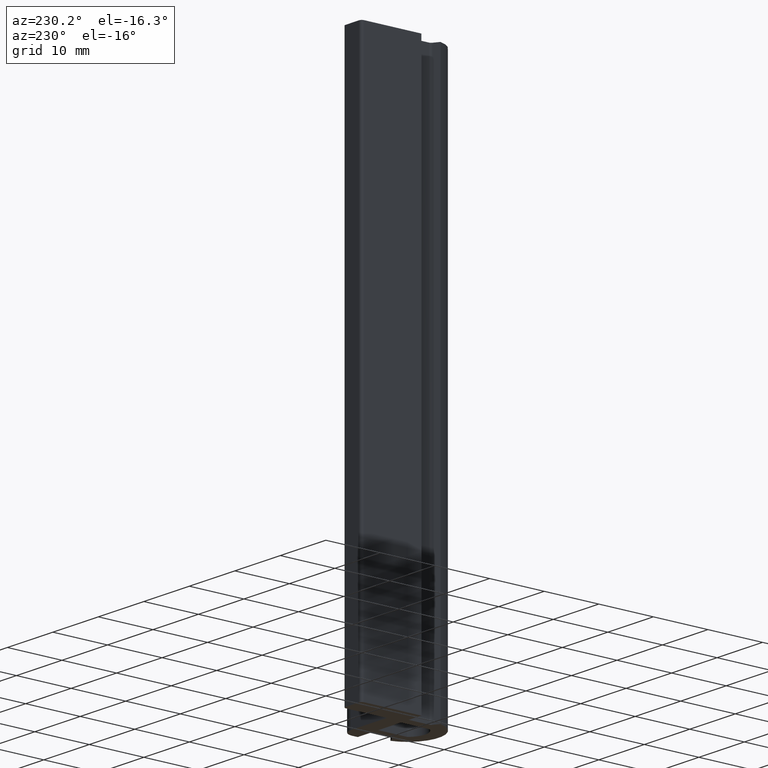
[diagram: clean part render]
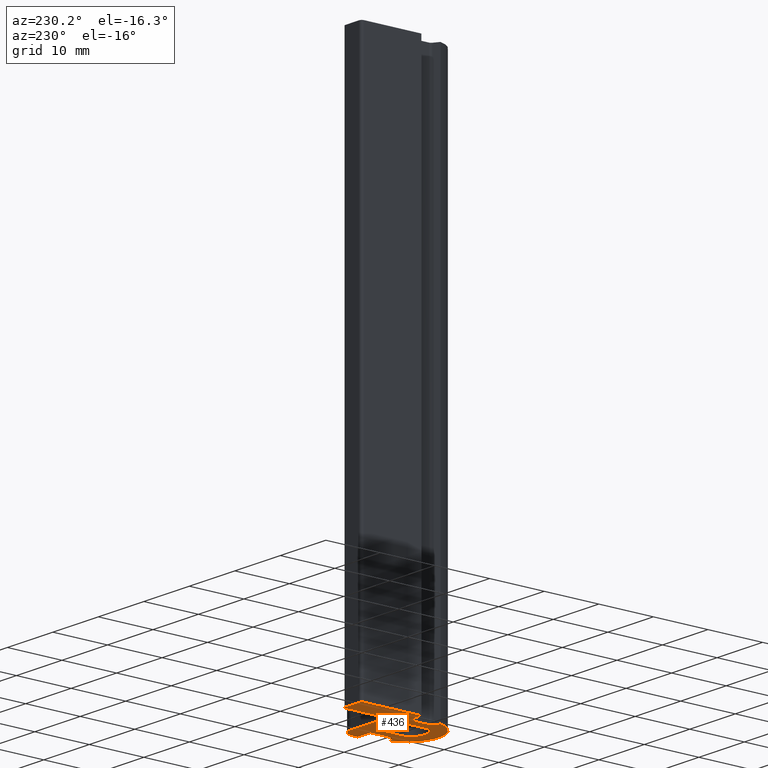
[diagram: same view with one face highlighted and labeled with its STEP entity id]
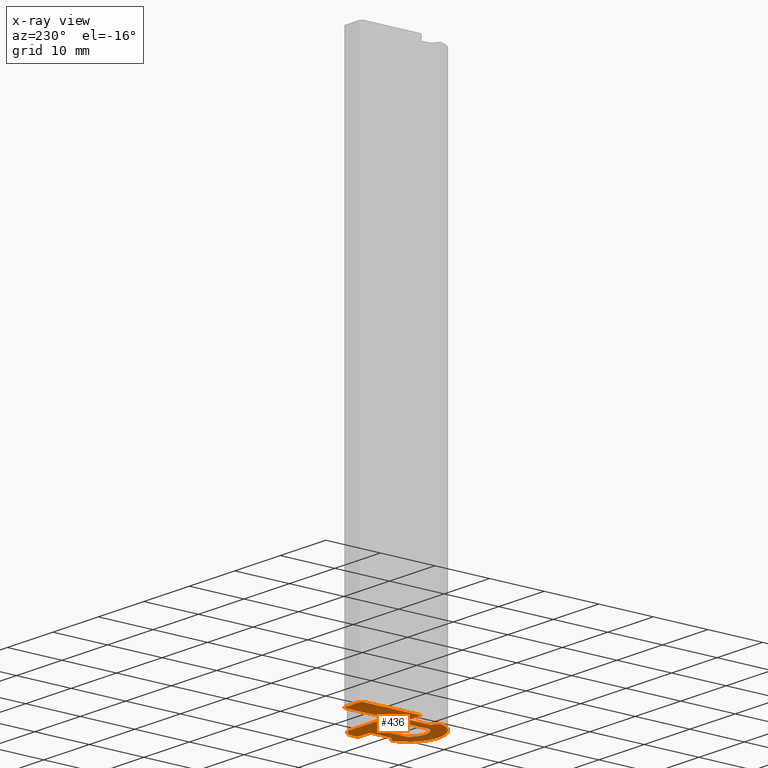
[diagram: x-ray of the same camera — body ghosted, the highlighted face saturated]
A machine part, auxiliary view. The second image highlights one B-rep face of the part: STEP entity #436.
The next image is the same camera in x-ray: the body ghosted, the highlighted face saturated — about 0% of this face is hidden behind the body in this view.
In plain terms, the highlighted planar face has unit normal (0, 0, 1).
Its self-contained STEP definition (entity closure, byte-faithful):
#15=FACE_BOUND('',#62,.T.);
#19=PLANE('',#467);
#38=FACE_OUTER_BOUND('',#61,.T.);
#61=EDGE_LOOP('',(#318,#319,#320,#321,#322,#323,#324,#325,#326,#327,#328,
#329,#330,#331,#332,#333,#334));
#62=EDGE_LOOP('',(#335,#336,#337,#338));
#83=LINE('',#630,#132);
#88=LINE('',#645,#137);
#93=LINE('',#660,#142);
#94=LINE('',#664,#143);
#95=LINE('',#666,#144);
#96=LINE('',#670,#145);
#97=LINE('',#671,#146);
#98=LINE('',#673,#147);
#99=LINE('',#676,#148);
#100=LINE('',#678,#149);
#101=LINE('',#679,#150);
#102=LINE('',#682,#151);
#103=LINE('',#684,#152);
#104=LINE('',#687,#153);
#132=VECTOR('',#505,1.21243556529822);
#137=VECTOR('',#518,3.71132486540519);
#142=VECTOR('',#531,3.);
#143=VECTOR('',#534,7.5);
#144=VECTOR('',#535,8.);
#145=VECTOR('',#538,1.);
#146=VECTOR('',#539,2.8);
#147=VECTOR('',#540,1.21243556529821);
#148=VECTOR('',#543,3.71132486540519);
#149=VECTOR('',#544,2.8);
#150=VECTOR('',#545,10.5);
#151=VECTOR('',#546,5.);
#152=VECTOR('',#547,5.28777142304358);
#153=VECTOR('',#550,5.28777142304358);
#179=CIRCLE('',#457,0.5);
#181=CIRCLE('',#461,0.5);
#184=CIRCLE('',#466,0.5);
#185=CIRCLE('',#468,0.5);
#186=CIRCLE('',#469,2.);
#187=CIRCLE('',#470,5.68401094873188);
#188=CIRCLE('',#471,3.18401094873187);
#193=VERTEX_POINT('',#620);
#194=VERTEX_POINT('',#621);
#197=VERTEX_POINT('',#629);
#199=VERTEX_POINT('',#635);
#200=VERTEX_POINT('',#636);
#203=VERTEX_POINT('',#644);
#207=VERTEX_POINT('',#653);
#208=VERTEX_POINT('',#655);
#209=VERTEX_POINT('',#659);
#210=VERTEX_POINT('',#661);
#211=VERTEX_POINT('',#663);
#212=VERTEX_POINT('',#665);
#213=VERTEX_POINT('',#667);
#214=VERTEX_POINT('',#669);
#215=VERTEX_POINT('',#672);
#216=VERTEX_POINT('',#675);
#217=VERTEX_POINT('',#677);
#218=VERTEX_POINT('',#680);
#219=VERTEX_POINT('',#681);
#220=VERTEX_POINT('',#683);
#221=VERTEX_POINT('',#685);
#235=EDGE_CURVE('',#193,#194,#179,.T.);
#239=EDGE_CURVE('',#197,#194,#83,.T.);
#242=EDGE_CURVE('',#199,#200,#181,.T.);
#246=EDGE_CURVE('',#203,#200,#88,.T.);
#251=EDGE_CURVE('',#207,#208,#184,.T.);
#253=EDGE_CURVE('',#207,#209,#93,.T.);
#254=EDGE_CURVE('',#210,#209,#185,.T.);
#255=EDGE_CURVE('',#210,#211,#94,.T.);
#256=EDGE_CURVE('',#211,#212,#95,.T.);
#257=EDGE_CURVE('',#213,#212,#186,.T.);
#258=EDGE_CURVE('',#213,#214,#96,.T.);
#259=EDGE_CURVE('',#214,#203,#97,.T.);
#260=EDGE_CURVE('',#199,#215,#98,.T.);
#261=EDGE_CURVE('',#215,#197,#187,.T.);
#262=EDGE_CURVE('',#193,#216,#99,.T.);
#263=EDGE_CURVE('',#216,#217,#100,.T.);
#264=EDGE_CURVE('',#217,#208,#101,.T.);
#265=EDGE_CURVE('',#218,#219,#102,.T.);
#266=EDGE_CURVE('',#219,#220,#103,.T.);
#267=EDGE_CURVE('',#220,#221,#188,.T.);
#268=EDGE_CURVE('',#221,#218,#104,.T.);
#318=ORIENTED_EDGE('',*,*,#251,.F.);
#319=ORIENTED_EDGE('',*,*,#253,.T.);
#320=ORIENTED_EDGE('',*,*,#254,.F.);
#321=ORIENTED_EDGE('',*,*,#255,.T.);
#322=ORIENTED_EDGE('',*,*,#256,.T.);
#323=ORIENTED_EDGE('',*,*,#257,.F.);
#324=ORIENTED_EDGE('',*,*,#258,.T.);
#325=ORIENTED_EDGE('',*,*,#259,.T.);
#326=ORIENTED_EDGE('',*,*,#246,.T.);
#327=ORIENTED_EDGE('',*,*,#242,.F.);
#328=ORIENTED_EDGE('',*,*,#260,.T.);
#329=ORIENTED_EDGE('',*,*,#261,.T.);
#330=ORIENTED_EDGE('',*,*,#239,.T.);
#331=ORIENTED_EDGE('',*,*,#235,.F.);
#332=ORIENTED_EDGE('',*,*,#262,.T.);
#333=ORIENTED_EDGE('',*,*,#263,.T.);
#334=ORIENTED_EDGE('',*,*,#264,.T.);
#335=ORIENTED_EDGE('',*,*,#265,.T.);
#336=ORIENTED_EDGE('',*,*,#266,.T.);
#337=ORIENTED_EDGE('',*,*,#267,.T.);
#338=ORIENTED_EDGE('',*,*,#268,.T.);
#436=ADVANCED_FACE('',(#38,#15),#19,.F.);
#457=AXIS2_PLACEMENT_3D('',#622,#497,#498);
#461=AXIS2_PLACEMENT_3D('',#637,#510,#511);
#466=AXIS2_PLACEMENT_3D('',#656,#526,#527);
#467=AXIS2_PLACEMENT_3D('',#658,#529,#530);
#468=AXIS2_PLACEMENT_3D('',#662,#532,#533);
#469=AXIS2_PLACEMENT_3D('',#668,#536,#537);
#470=AXIS2_PLACEMENT_3D('',#674,#541,#542);
#471=AXIS2_PLACEMENT_3D('',#686,#548,#549);
#497=DIRECTION('center_axis',(0.,0.,-1.));
#498=DIRECTION('ref_axis',(0.866025403784439,-0.5,0.));
#505=DIRECTION('',(0.866025403784439,0.5,0.));
#510=DIRECTION('center_axis',(0.,0.,-1.));
#511=DIRECTION('ref_axis',(-0.866025403784439,-0.5,0.));
#518=DIRECTION('',(0.,-1.,0.));
#526=DIRECTION('center_axis',(0.,0.,1.));
#527=DIRECTION('ref_axis',(-0.707106781186549,0.707106781186546,0.));
#529=DIRECTION('center_axis',(0.,0.,1.));
#530=DIRECTION('ref_axis',(1.,0.,0.));
#531=DIRECTION('',(1.,0.,0.));
#532=DIRECTION('center_axis',(0.,0.,1.));
#533=DIRECTION('ref_axis',(0.707106781186546,0.707106781186549,0.));
#534=DIRECTION('',(0.,-1.,0.));
#535=DIRECTION('',(1.,0.,0.));
#536=DIRECTION('center_axis',(0.,0.,1.));
#537=DIRECTION('ref_axis',(0.707106781186548,0.707106781186547,0.));
#538=DIRECTION('',(0.,-1.,0.));
#539=DIRECTION('',(-1.,0.,0.));
#540=DIRECTION('',(0.866025403784438,-0.5,0.));
#541=DIRECTION('center_axis',(0.,0.,-1.));
#542=DIRECTION('ref_axis',(0.967626566804392,0.25238626589881,0.));
#543=DIRECTION('',(-1.38777878078145E-16,1.,0.));
#544=DIRECTION('',(-1.,0.,0.));
#545=DIRECTION('',(0.,1.,0.));
#546=DIRECTION('',(-1.,0.,0.));
#547=DIRECTION('',(0.,-1.,0.));
#548=DIRECTION('center_axis',(0.,0.,1.));
#549=DIRECTION('ref_axis',(0.785173179443902,0.619276253607349,0.));
#550=DIRECTION('',(5.24901199296794E-17,1.,0.));
#620=CARTESIAN_POINT('',(-4.2,-3.71132486540519,0.));
#621=CARTESIAN_POINT('',(-4.45,-4.14433756729741,0.));
#622=CARTESIAN_POINT('Origin',(-4.7,-3.71132486540519,0.));
#629=CARTESIAN_POINT('',(-5.5,-4.75055534994651,0.));
#630=CARTESIAN_POINT('',(-5.5,-4.75055534994651,0.));
#635=CARTESIAN_POINT('',(4.45,-4.14433756729741,0.));
#636=CARTESIAN_POINT('',(4.2,-3.71132486540519,0.));
#637=CARTESIAN_POINT('Origin',(4.7,-3.71132486540519,0.));
#644=CARTESIAN_POINT('',(4.2,0.,0.));
#645=CARTESIAN_POINT('',(4.2,0.,0.));
#653=CARTESIAN_POINT('',(-6.5,11.,0.));
#655=CARTESIAN_POINT('',(-7.,10.5,0.));
#656=CARTESIAN_POINT('Origin',(-6.5,10.5,0.));
#658=CARTESIAN_POINT('Origin',(-1.25353572710204,1.28134908684579,0.));
#659=CARTESIAN_POINT('',(-3.5,11.,0.));
#660=CARTESIAN_POINT('',(-7.,11.,0.));
#661=CARTESIAN_POINT('',(-3.,10.5,0.));
#662=CARTESIAN_POINT('Origin',(-3.5,10.5,0.));
#663=CARTESIAN_POINT('',(-3.,3.,0.));
#664=CARTESIAN_POINT('',(-3.,11.,0.));
#665=CARTESIAN_POINT('',(5.,3.,0.));
#666=CARTESIAN_POINT('',(-3.,3.,0.));
#667=CARTESIAN_POINT('',(7.,1.,0.));
#668=CARTESIAN_POINT('Origin',(5.,1.,0.));
#669=CARTESIAN_POINT('',(7.,0.,0.));
#670=CARTESIAN_POINT('',(7.,3.,0.));
#671=CARTESIAN_POINT('',(7.,0.,0.));
#672=CARTESIAN_POINT('',(5.5,-4.75055534994651,0.));
#673=CARTESIAN_POINT('',(4.2,-4.,0.));
#674=CARTESIAN_POINT('Origin',(0.,-3.31598905126813,0.));
#675=CARTESIAN_POINT('',(-4.2,0.,0.));
#676=CARTESIAN_POINT('',(-4.2,-4.,0.));
#677=CARTESIAN_POINT('',(-7.,0.,0.));
#678=CARTESIAN_POINT('',(-4.2,0.,0.));
#679=CARTESIAN_POINT('',(-7.,0.,0.));
#680=CARTESIAN_POINT('',(2.5,0.,0.));
#681=CARTESIAN_POINT('',(-2.5,0.,0.));
#682=CARTESIAN_POINT('',(0.623232136448981,0.,0.));
#683=CARTESIAN_POINT('',(-2.5,-5.28777142304358,0.));
#684=CARTESIAN_POINT('',(-2.5,0.640674543422896,0.));
#685=CARTESIAN_POINT('',(2.5,-5.28777142304358,0.));
#686=CARTESIAN_POINT('Origin',(0.,-3.31598905126813,0.));
#687=CARTESIAN_POINT('',(2.5,-2.0032111680989,0.));